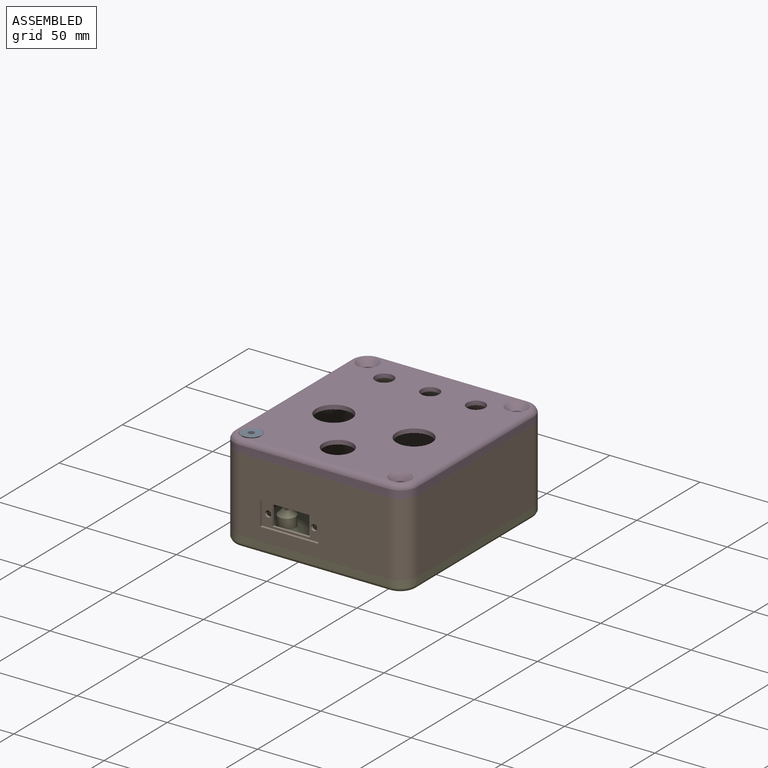
[diagram: assembled view]
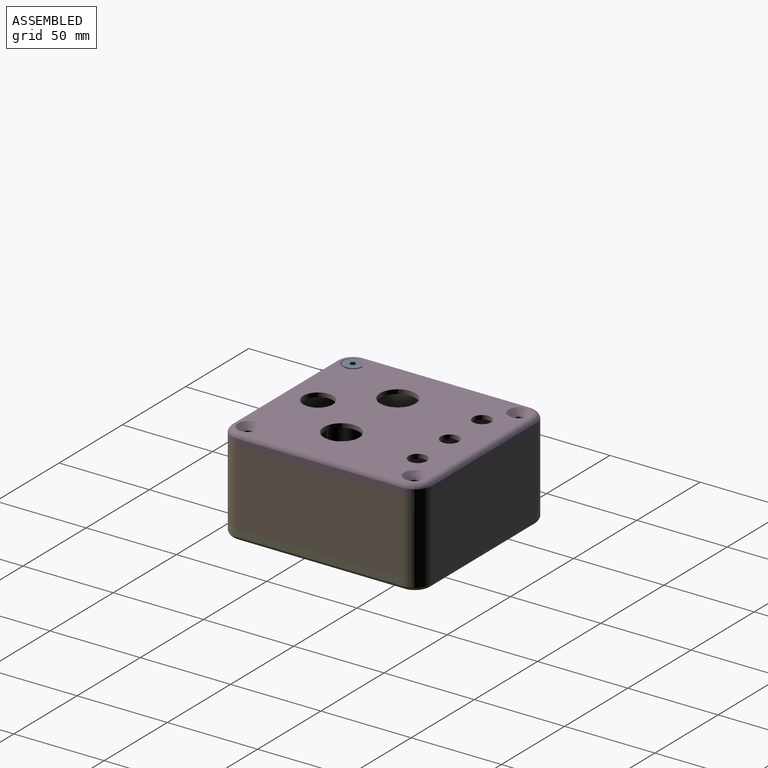
[diagram: assembled view, second angle]
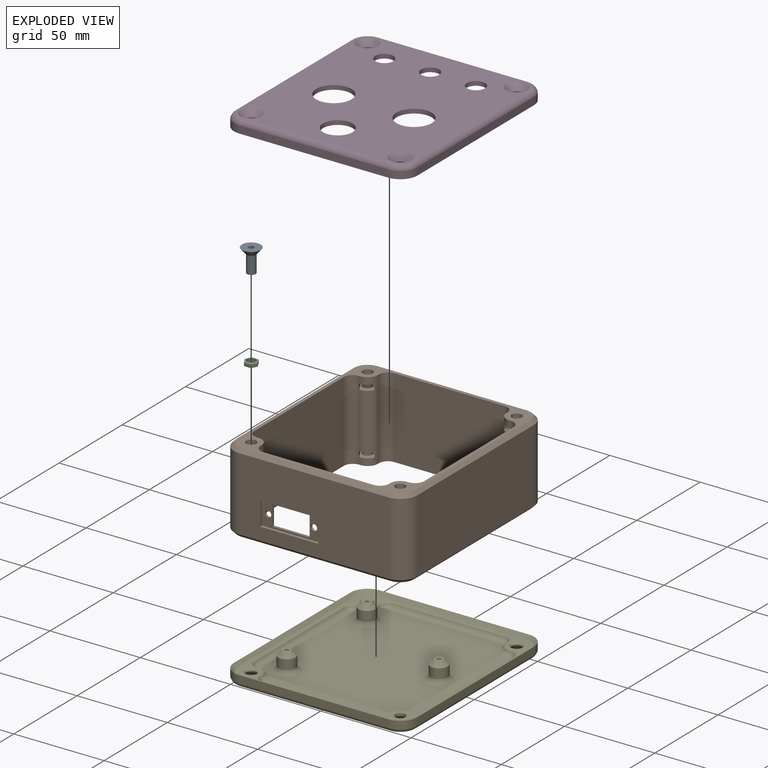
[diagram: exploded view]
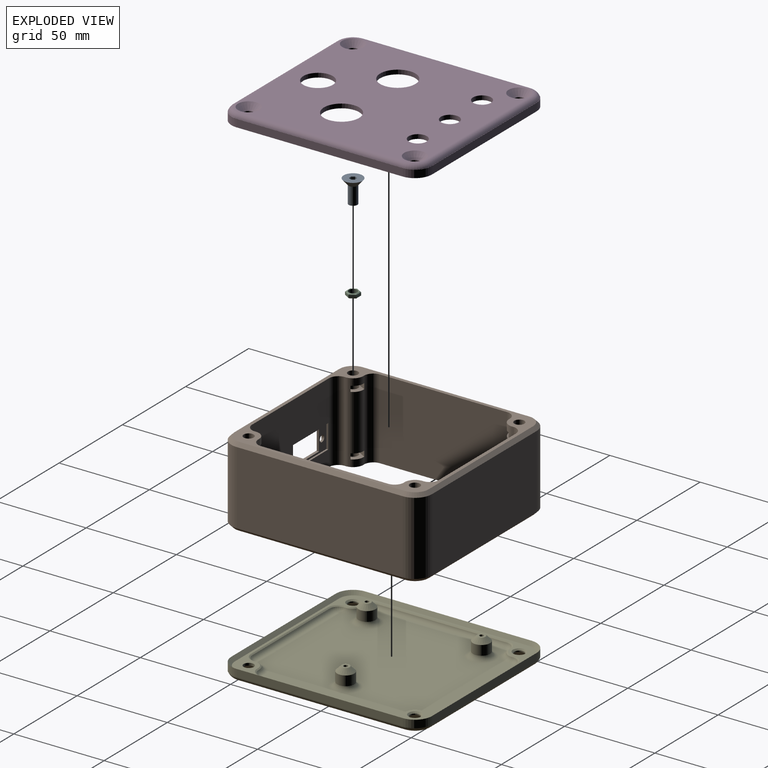
[diagram: exploded view, second angle]
ASSEMBLY  parts=5 mates=4
PART A: 11 faces, bbox 10.4x10.4x12.8 mm
  f0: plane 4.83x4.83mm, normal (0,0,-1), area 18.3mm2, adj f1
  f1: cylinder r=2.41mm len=9.53mm, axis (0,0,-1), area 144.4mm2, adj f0,f2
  f2: cone r=2.41mm half-angle=41deg, axis (0,0,1), area 102.5mm2, adj f1,f3
  f3: plane 10.44x10.44mm, normal (0,0,1), area 76.9mm2, adj f2,f4,f5,f6,f7,f8,f9
  f4: plane 2.36x1.65mm, normal (-0.9,0.44,0), area 4.3mm2, adj f3,f5,f9,f10
  f5: plane 2.36x1.52mm, normal (-0.83,-0.56,0), area 4.3mm2, adj f3,f4,f6,f10
  f6: plane 2.36x1.83mm, normal (0.07,-1,0), area 4.3mm2, adj f3,f5,f7,f10
  f7: plane 2.36x1.65mm, normal (0.9,-0.44,0), area 4.3mm2, adj f3,f6,f8,f10
  f8: plane 2.36x1.52mm, normal (0.83,0.56,0), area 4.3mm2, adj f3,f7,f9,f10
  f9: plane 2.36x1.83mm, normal (-0.07,1,0), area 4.3mm2, adj f3,f4,f8,f10
  f10: plane 3.66x3.29mm, normal (0,0,1), area 8.7mm2, adj f4,f5,f6,f7,f8,f9
PART B: 118 faces, bbox 101.6x111.1x44.5 mm
  f0: plane 11.1x1.27mm, normal (-1,0,0), area 14.1mm2, adj f1,f3,f112,f117
  f1: plane 20.62x1.27mm, normal (0,0,-1), area 26.2mm2, adj f0,f2,f112,f117
  f2: plane 11.1x1.27mm, normal (1,0,0), area 14.1mm2, adj f1,f3,f112,f117
  f3: plane 20.62x1.27mm, normal (0,0,1), area 26.2mm2, adj f0,f2,f112,f117
  f4: cylinder r=1.74mm len=3.48mm, axis (0,-1,0), area 13.9mm2, adj f112,f117
  f5: cylinder r=1.74mm len=3.48mm, axis (0,-1,0), area 13.9mm2, adj f112,f117
  f6: plane 61x44.45mm, normal (0,1,0), area 2285.3mm2, adj f44,f45,f54,f55,f113,f114,f115,f116
  f7: plane 82.55x40.64mm, normal (0,-1,0), area 2928.8mm2, adj f33,f51,f99,f104,f108,f109,f110,f111
  f8: plane 5.67x3.28mm, normal (0.87,0.5,0), area 20mm2, adj f9,f43,f73,f90
  f9: plane 3.96x3.05mm, normal (0,1,0), area 12.1mm2, adj f8,f10,f73,f90
  f10: plane 3.43x3.05mm, normal (-0.87,0.5,0), area 12.1mm2, adj f9,f11,f73,f90
  f11: plane 5.7x3.29mm, normal (-0.87,-0.5,0), area 20mm2, adj f10,f42,f73,f90
  f12: plane 3.96x3.05mm, normal (0,-1,0), area 12.1mm2, adj f13,f15,f79,f87
  f13: plane 5.67x3.28mm, normal (0.87,-0.5,0), area 20mm2, adj f12,f39,f79,f87
  f14: plane 5.7x3.29mm, normal (-0.87,0.5,0), area 20mm2, adj f15,f40,f79,f87
  f15: plane 3.43x3.05mm, normal (-0.87,-0.5,0), area 12.1mm2, adj f12,f14,f79,f87
  f16: plane 5.7x3.29mm, normal (0.87,-0.5,0), area 20mm2, adj f17,f47,f67,f84
  f17: plane 3.43x3.05mm, normal (0.87,0.5,0), area 12.1mm2, adj f16,f18,f67,f84
  f18: plane 3.96x3.05mm, normal (0,1,0), area 12.1mm2, adj f17,f19,f67,f84
  f19: plane 5.67x3.28mm, normal (-0.87,0.5,0), area 20mm2, adj f18,f46,f67,f84
  f20: plane 3.43x3.05mm, normal (0.87,-0.5,0), area 12.1mm2, adj f21,f23,f61,f81
  f21: plane 5.7x3.29mm, normal (0.87,0.5,0), area 20mm2, adj f20,f34,f61,f81
  f22: plane 5.67x3.28mm, normal (-0.87,-0.5,0), area 20mm2, adj f23,f35,f61,f81
  f23: plane 3.96x3.05mm, normal (0,-1,0), area 12.1mm2, adj f20,f22,f61,f81
  f24: cylinder r=2.79mm len=5.59mm, axis (0,0,-1), area 66.9mm2, adj f55,f78
  f25: cylinder r=2.79mm len=5.59mm, axis (0,0,-1), area 66.9mm2, adj f55,f72
  f26: cylinder r=2.79mm len=5.59mm, axis (0,0,-1), area 66.9mm2, adj f55,f66
  f27: cylinder r=2.79mm len=5.59mm, axis (0,0,-1), area 66.9mm2, adj f55,f60
  f28: plane 92.08x40.64mm, normal (1,0,0), area 3741.9mm2, adj f29,f51,f95,f100
  f29: cylinder r=9.53mm len=40.64mm, axis (0,0,-1), area 608mm2, adj f28,f30,f93,f101
  f30: plane 82.55x40.64mm, normal (0,1,0), area 3354.8mm2, adj f29,f31,f92,f103
  f31: cylinder r=9.53mm len=40.64mm, axis (0,0,-1), area 608mm2, adj f30,f32,f94,f105
  f32: plane 92.08x40.64mm, normal (-1,0,0), area 3741.9mm2, adj f31,f33,f96,f107
  f33: cylinder r=9.53mm len=40.64mm, axis (0,0,-1), area 608mm2, adj f7,f32,f98,f106
  f34: cylinder r=5.08mm len=44.45mm, axis (0,0,-1), area 365.9mm2, adj f21,f35,f52,f54,f55,f57,f60,f61
  f35: cylinder r=5.71mm len=44.45mm, axis (0,0,-1), area 386.2mm2, adj f22,f34,f36,f54,f55,f58,f60,f61
  f36: cylinder r=5.08mm len=44.45mm, axis (0,0,-1), area 368mm2, adj f35,f37,f54,f55
  f37: plane 61x44.45mm, normal (0,-1,0), area 2711.3mm2, adj f36,f38,f54,f55
  f38: cylinder r=5.08mm len=44.45mm, axis (0,0,-1), area 368mm2, adj f37,f39,f54,f55
  f39: cylinder r=5.71mm len=44.45mm, axis (0,0,-1), area 386.2mm2, adj f13,f38,f40,f54,f55,f75,f78,f79
  f40: cylinder r=5.08mm len=44.45mm, axis (0,0,-1), area 365.9mm2, adj f14,f39,f41,f54,f55,f76,f78,f79
  f41: plane 70.52x44.45mm, normal (-1,0,0), area 3134.7mm2, adj f40,f42,f54,f55
  f42: cylinder r=5.08mm len=44.45mm, axis (0,0,-1), area 365.9mm2, adj f11,f41,f43,f54,f55,f71,f72,f73
  f43: cylinder r=5.71mm len=44.45mm, axis (0,0,-1), area 386.2mm2, adj f8,f42,f44,f54,f55,f68,f72,f73
  f44: cylinder r=5.08mm len=44.45mm, axis (0,0,-1), area 368mm2, adj f6,f43,f54,f55
  f45: cylinder r=5.08mm len=44.45mm, axis (0,0,-1), area 368mm2, adj f6,f46,f54,f55
  f46: cylinder r=5.71mm len=44.45mm, axis (0,0,-1), area 386.2mm2, adj f19,f45,f47,f54,f55,f65,f66,f67
  f47: cylinder r=5.08mm len=44.45mm, axis (0,0,-1), area 365.9mm2, adj f16,f46,f52,f54,f55,f62,f66,f67
  f48: cylinder r=2.79mm len=5.59mm, axis (0,0,-1), area 66.9mm2, adj f54,f79
  f49: cylinder r=2.79mm len=5.59mm, axis (0,0,-1), area 66.9mm2, adj f54,f73
  f50: cylinder r=2.79mm len=5.59mm, axis (0,0,-1), area 66.9mm2, adj f54,f67
  f51: cylinder r=9.53mm len=40.64mm, axis (0,0,-1), area 608mm2, adj f7,f28,f97,f102
  f52: plane 70.52x44.45mm, normal (1,0,0), area 3134.7mm2, adj f34,f47,f54,f55
  f53: cylinder r=2.79mm len=5.59mm, axis (0,0,-1), area 66.9mm2, adj f54,f61
  f54: plane 107.32x97.79mm, normal (0,0,1), area 1157mm2, adj f6,f34,f35,f36,f37,f38,f39,f40
  f55: plane 107.32x97.79mm, normal (0,0,-1), area 1157mm2, adj f6,f24,f25,f26,f27,f34,f35,f36
  f56: plane 3.43x3.05mm, normal (0.87,-0.5,0), area 12.1mm2, adj f57,f59,f60,f82
  f57: plane 5.7x3.29mm, normal (0.87,0.5,0), area 20mm2, adj f34,f56,f60,f82
  f58: plane 5.67x3.28mm, normal (-0.87,-0.5,0), area 20mm2, adj f35,f59,f60,f82
  f59: plane 3.96x3.05mm, normal (0,-1,0), area 12.1mm2, adj f56,f58,f60,f82
  f60: plane 9.22x9.14mm, normal (0,0,1), area 32.5mm2, adj f27,f34,f35,f56,f57,f58,f59
  f61: plane 9.22x9.14mm, normal (0,0,-1), area 32.5mm2, adj f20,f21,f22,f23,f34,f35,f53
  f62: plane 5.7x3.29mm, normal (0.87,-0.5,0), area 20mm2, adj f47,f63,f66,f85
  f63: plane 3.43x3.05mm, normal (0.87,0.5,0), area 12.1mm2, adj f62,f64,f66,f85
  f64: plane 3.96x3.05mm, normal (0,1,0), area 12.1mm2, adj f63,f65,f66,f85
  f65: plane 5.67x3.28mm, normal (-0.87,0.5,0), area 20mm2, adj f46,f64,f66,f85
  f66: plane 9.22x9.14mm, normal (0,0,1), area 32.5mm2, adj f26,f46,f47,f62,f63,f64,f65
  f67: plane 9.22x9.14mm, normal (0,0,-1), area 32.5mm2, adj f16,f17,f18,f19,f46,f47,f50
  f68: plane 5.67x3.28mm, normal (0.87,0.5,0), area 20mm2, adj f43,f69,f72,f91
  f69: plane 3.96x3.05mm, normal (0,1,0), area 12.1mm2, adj f68,f70,f72,f91
  f70: plane 3.43x3.05mm, normal (-0.87,0.5,0), area 12.1mm2, adj f69,f71,f72,f91
  f71: plane 5.7x3.29mm, normal (-0.87,-0.5,0), area 20mm2, adj f42,f70,f72,f91
  f72: plane 9.22x9.14mm, normal (0,0,1), area 32.5mm2, adj f25,f42,f43,f68,f69,f70,f71
  f73: plane 9.22x9.14mm, normal (0,0,-1), area 32.5mm2, adj f8,f9,f10,f11,f42,f43,f49
  f74: plane 3.96x3.05mm, normal (0,-1,0), area 12.1mm2, adj f75,f77,f78,f88
  f75: plane 5.67x3.28mm, normal (0.87,-0.5,0), area 20mm2, adj f39,f74,f78,f88
  f76: plane 5.7x3.29mm, normal (-0.87,0.5,0), area 20mm2, adj f40,f77,f78,f88
  f77: plane 3.43x3.05mm, normal (-0.87,-0.5,0), area 12.1mm2, adj f74,f76,f78,f88
  f78: plane 9.22x9.14mm, normal (0,0,1), area 32.5mm2, adj f24,f39,f40,f74,f75,f76,f77
  f79: plane 9.22x9.14mm, normal (0,0,-1), area 32.5mm2, adj f12,f13,f14,f15,f39,f40,f48
  f80: cylinder r=2.79mm len=30.73mm, axis (0,0,-1), area 539.5mm2, adj f81,f82
  f81: plane 9.22x9.14mm, normal (0,0,1), area 32.5mm2, adj f20,f21,f22,f23,f34,f35,f80
  f82: plane 9.22x9.14mm, normal (0,0,-1), area 32.5mm2, adj f34,f35,f56,f57,f58,f59,f80
  f83: cylinder r=2.79mm len=30.73mm, axis (0,0,-1), area 539.5mm2, adj f84,f85
  f84: plane 9.22x9.14mm, normal (0,0,1), area 32.5mm2, adj f16,f17,f18,f19,f46,f47,f83
  f85: plane 9.22x9.14mm, normal (0,0,-1), area 32.5mm2, adj f46,f47,f62,f63,f64,f65,f83
  f86: cylinder r=2.79mm len=30.73mm, axis (0,0,-1), area 539.5mm2, adj f87,f88
  f87: plane 9.22x9.14mm, normal (0,0,1), area 32.5mm2, adj f12,f13,f14,f15,f39,f40,f86
  f88: plane 9.22x9.14mm, normal (0,0,-1), area 32.5mm2, adj f39,f40,f74,f75,f76,f77,f86
  f89: cylinder r=2.79mm len=30.73mm, axis (0,0,-1), area 539.5mm2, adj f90,f91
  f90: plane 9.22x9.14mm, normal (0,0,1), area 32.5mm2, adj f8,f9,f10,f11,f42,f43,f89
  f91: plane 9.22x9.14mm, normal (0,0,-1), area 32.5mm2, adj f42,f43,f68,f69,f70,f71,f89
  f92: plane 82.55x1.91mm, normal (0,0.71,-0.71), area 222.4mm2, adj f30,f55,f93,f94
  f93: cone r=9.53mm half-angle=45deg, axis (0,0,1), area 36.3mm2, adj f29,f55,f92,f95
  f94: cone r=9.53mm half-angle=45deg, axis (0,0,1), area 36.3mm2, adj f31,f55,f92,f96
  f95: plane 92.08x1.91mm, normal (0.71,0,-0.71), area 248.1mm2, adj f28,f55,f93,f97
  f96: plane 92.08x1.91mm, normal (-0.71,0,-0.71), area 248.1mm2, adj f32,f55,f94,f98
  f97: cone r=9.53mm half-angle=45deg, axis (0,0,1), area 36.3mm2, adj f51,f55,f95,f99
  f98: cone r=9.53mm half-angle=45deg, axis (0,0,1), area 36.3mm2, adj f33,f55,f96,f99
  f99: plane 82.55x1.91mm, normal (0,-0.71,-0.71), area 222.4mm2, adj f7,f55,f97,f98
  f100: plane 92.08x1.91mm, normal (0.71,0,0.71), area 248.1mm2, adj f28,f54,f101,f102
  f101: cone r=7.62mm half-angle=45deg, axis (0,0,-1), area 36.3mm2, adj f29,f54,f100,f103
  f102: cone r=7.62mm half-angle=45deg, axis (0,0,-1), area 36.3mm2, adj f51,f54,f100,f104
  f103: plane 82.55x1.91mm, normal (0,0.71,0.71), area 222.4mm2, adj f30,f54,f101,f105
  f104: plane 82.55x1.91mm, normal (0,-0.71,0.71), area 222.4mm2, adj f7,f54,f102,f106
  f105: cone r=7.62mm half-angle=45deg, axis (0,0,-1), area 36.3mm2, adj f31,f54,f103,f107
  f106: cone r=7.62mm half-angle=45deg, axis (0,0,-1), area 36.3mm2, adj f33,f54,f104,f107
  f107: plane 92.08x1.91mm, normal (-0.71,0,0.71), area 248.1mm2, adj f32,f54,f105,f106
  f108: plane 32.26x1.52mm, normal (0,0,1), area 49.2mm2, adj f7,f109,f111,f112
  f109: plane 13.21x1.52mm, normal (-1,0,0), area 20.1mm2, adj f7,f108,f110,f112
  f110: plane 32.26x1.52mm, normal (0,0,-1), area 49.2mm2, adj f7,f109,f111,f112
  f111: plane 13.21x1.52mm, normal (1,0,0), area 20.1mm2, adj f7,f108,f110,f112
  f112: plane 32.26x13.21mm, normal (0,-1,0), area 178.1mm2, adj f0,f1,f2,f3,f4,f5,f108,f109
  f113: plane 32.26x1.02mm, normal (0,0,1), area 32.8mm2, adj f6,f114,f116,f117
  f114: plane 13.21x1.02mm, normal (1,0,0), area 13.4mm2, adj f6,f113,f115,f117
  f115: plane 32.26x1.02mm, normal (0,0,-1), area 32.8mm2, adj f6,f114,f116,f117
  f116: plane 13.21x1.02mm, normal (-1,0,0), area 13.4mm2, adj f6,f113,f115,f117
  f117: plane 32.26x13.21mm, normal (0,1,0), area 178.1mm2, adj f0,f1,f2,f3,f4,f5,f113,f114
PART C: 21 faces, bbox 7.3x6.4x2.4 mm
  f0: plane 3.18x1.83mm, normal (0.87,0.5,0), area 5.7mm2, adj f1,f6,f10,f17
  f1: plane 3.67x1.56mm, normal (0,1,0), area 5.7mm2, adj f0,f2,f12,f15
  f2: plane 3.18x1.83mm, normal (-0.87,0.5,0), area 5.7mm2, adj f1,f3,f14,f16
  f3: plane 3.18x1.83mm, normal (-0.87,-0.5,0), area 5.7mm2, adj f2,f4,f13,f18
  f4: plane 3.67x1.56mm, normal (0,-1,0), area 5.7mm2, adj f3,f6,f11,f20
  f5: cylinder r=2.41mm len=4.83mm, axis (0,0,-1), area 36mm2, adj f7,f8
  f6: plane 3.18x1.83mm, normal (0.87,-0.5,0), area 5.7mm2, adj f0,f4,f9,f19
  f7: plane 6.39x5.54mm, normal (0,0,1), area 8.3mm2, adj f5,f15,f16,f17,f18,f19,f20
  f8: plane 6.39x5.54mm, normal (0,0,-1), area 8.3mm2, adj f5,f9,f10,f11,f12,f13,f14
  f9: plane 3.18x2.07mm, normal (0.61,-0.35,-0.71), area 2mm2, adj f6,f8,f10,f11
  f10: plane 3.18x2.07mm, normal (0.61,0.35,-0.71), area 2mm2, adj f0,f8,f9,f12
  f11: plane 3.67x0.41mm, normal (0,-0.71,-0.71), area 2mm2, adj f4,f8,f9,f13
  f12: plane 3.67x0.41mm, normal (0,0.71,-0.71), area 2mm2, adj f1,f8,f10,f14
  f13: plane 3.18x2.07mm, normal (-0.61,-0.35,-0.71), area 2mm2, adj f3,f8,f11,f14
  f14: plane 3.18x2.07mm, normal (-0.61,0.35,-0.71), area 2mm2, adj f2,f8,f12,f13
  f15: plane 3.67x0.41mm, normal (0,0.71,0.71), area 2mm2, adj f1,f7,f16,f17
  f16: plane 3.18x2.07mm, normal (-0.61,0.35,0.71), area 2mm2, adj f2,f7,f15,f18
  f17: plane 3.18x2.07mm, normal (0.61,0.35,0.71), area 2mm2, adj f0,f7,f15,f19
  f18: plane 3.18x2.07mm, normal (-0.61,-0.35,0.71), area 2mm2, adj f3,f7,f16,f20
  f19: plane 3.18x2.07mm, normal (0.61,-0.35,0.71), area 2mm2, adj f6,f7,f17,f20
  f20: plane 3.67x0.41mm, normal (0,-0.71,0.71), area 2mm2, adj f4,f7,f18,f19
PART D: 92 faces, bbox 103.2x112.7x6.6 mm
  f0: plane 97.36x87.83mm, normal (0,0,-1), area 7030mm2, adj f2,f3,f4,f5,f6,f11,f17,f18
  f1: plane 107.35x97.83mm, normal (0,0,-1), area 918.5mm2, adj f10,f50,f51,f52,f53,f54,f55,f56
  f2: cylinder r=9.78mm len=19.56mm, axis (0,0,-1), area 146.3mm2, adj f0,f12
  f3: cylinder r=9.78mm len=19.56mm, axis (0,0,-1), area 146.3mm2, adj f0,f12
  f4: cylinder r=8.19mm len=16.38mm, axis (0,0,-1), area 122.6mm2, adj f0,f12
  f5: cylinder r=5.02mm len=10.03mm, axis (0,0,-1), area 75.1mm2, adj f0,f12
  f6: cylinder r=5.02mm len=10.03mm, axis (0,0,-1), area 75.1mm2, adj f0,f12
  f7: cylinder r=2.79mm len=5.59mm, axis (0,0,-1), area 11.4mm2, adj f13,f74
  f8: cylinder r=2.79mm len=5.59mm, axis (0,0,-1), area 11.4mm2, adj f14,f75
  f9: cylinder r=2.79mm len=5.59mm, axis (0,0,-1), area 11.4mm2, adj f15,f76
  f10: cylinder r=2.79mm len=5.59mm, axis (0,0,-1), area 24.7mm2, adj f1,f16
  f11: cylinder r=5.02mm len=10.03mm, axis (0,0,-1), area 75.1mm2, adj f0,f12
  f12: plane 104.78x95.25mm, normal (0,0,1), area 8448.6mm2, adj f2,f3,f4,f5,f6,f11,f13,f14
  f13: cone r=2.79mm half-angle=43.4deg, axis (0,0,1), area 127.1mm2, adj f7,f12
  f14: cone r=2.79mm half-angle=43.4deg, axis (0,0,1), area 127.1mm2, adj f8,f12
  f15: cone r=2.79mm half-angle=43.4deg, axis (0,0,1), area 127.1mm2, adj f9,f12
  f16: cone r=2.79mm half-angle=43.4deg, axis (0,0,1), area 127.1mm2, adj f10,f12
  f17: cylinder r=3.17mm len=70.52mm, axis (0,1,0), area 260.8mm2, adj f0,f18,f19,f66
  f18: torus R=2.01mm, axis (0,0,-1), area 22mm2, adj f0,f17,f20,f64
  f19: torus R=2.01mm, axis (0,0,-1), area 22mm2, adj f0,f17,f21,f68
  f20: torus R=8.79mm, axis (0,0,1), area 44.6mm2, adj f0,f18,f22,f62
  f21: torus R=8.79mm, axis (0,0,1), area 44.6mm2, adj f0,f19,f23,f70
  f22: torus R=2.01mm, axis (0,0,-1), area 22mm2, adj f0,f20,f24,f60
  f23: torus R=2.01mm, axis (0,0,-1), area 22mm2, adj f0,f21,f25,f72
  f24: cylinder r=3.17mm len=61mm, axis (1,0,0), area 225.5mm2, adj f0,f22,f26,f58
  f25: cylinder r=3.17mm len=61mm, axis (1,0,0), area 225.5mm2, adj f0,f23,f27,f73
  f26: torus R=2.01mm, axis (0,0,-1), area 22mm2, adj f0,f24,f28,f59
  f27: torus R=2.01mm, axis (0,0,-1), area 22mm2, adj f0,f25,f29,f71
  f28: torus R=8.79mm, axis (0,0,1), area 44.6mm2, adj f0,f26,f30,f61
  f29: torus R=8.79mm, axis (0,0,1), area 44.6mm2, adj f0,f27,f31,f69
  f30: torus R=2.01mm, axis (0,0,-1), area 22mm2, adj f0,f28,f32,f63
  f31: torus R=2.01mm, axis (0,0,-1), area 22mm2, adj f0,f29,f32,f67
  f32: cylinder r=3.17mm len=70.52mm, axis (0,1,0), area 260.8mm2, adj f0,f30,f31,f65
  f33: cylinder r=3.17mm len=82.55mm, axis (-1,0,0), area 345.5mm2, adj f12,f34,f35,f41
  f34: torus R=6.35mm, axis (0,0,1), area 53.6mm2, adj f12,f33,f36,f41
  f35: torus R=6.35mm, axis (0,0,1), area 53.6mm2, adj f12,f33,f37,f41
  f36: cylinder r=3.17mm len=92.08mm, axis (0,-1,0), area 385.3mm2, adj f12,f34,f38,f41
  f37: cylinder r=3.17mm len=92.08mm, axis (0,1,0), area 385.3mm2, adj f12,f35,f39,f41
  f38: torus R=6.35mm, axis (0,0,1), area 53.6mm2, adj f12,f36,f40,f41
  f39: torus R=6.35mm, axis (0,0,1), area 53.6mm2, adj f12,f37,f40,f41
  f40: cylinder r=3.17mm len=82.55mm, axis (1,0,0), area 345.5mm2, adj f12,f38,f39,f41
  f41: plane 111.13x101.6mm, normal (0,0,1), area 41.2mm2, adj f33,f34,f35,f36,f37,f38,f39,f40
  f42: cylinder r=9.53mm len=9.53mm, axis (0,0,-1), area 63.8mm2, adj f41,f43,f49,f52
  f43: plane 82.55x4.27mm, normal (0,-1,0), area 352.3mm2, adj f41,f42,f44,f54
  f44: cylinder r=9.53mm len=9.53mm, axis (0,0,-1), area 63.8mm2, adj f41,f43,f45,f56
  f45: plane 92.08x4.27mm, normal (-1,0,0), area 392.9mm2, adj f41,f44,f46,f57
  f46: cylinder r=9.53mm len=9.53mm, axis (0,0,-1), area 63.8mm2, adj f41,f45,f47,f55
  f47: plane 82.55x4.27mm, normal (0,1,0), area 352.3mm2, adj f41,f46,f48,f53
  f48: cylinder r=9.53mm len=9.53mm, axis (0,0,-1), area 63.8mm2, adj f41,f47,f49,f51
  f49: plane 92.08x4.27mm, normal (1,0,0), area 392.9mm2, adj f41,f42,f48,f50
  f50: plane 92.08x1.89mm, normal (-0.71,0,-0.71), area 245.6mm2, adj f1,f49,f51,f52
  f51: cone r=9.58mm half-angle=45deg, axis (0,0,-1), area 36mm2, adj f1,f48,f50,f53
  f52: cone r=9.58mm half-angle=45deg, axis (0,0,-1), area 36mm2, adj f1,f42,f50,f54
  f53: plane 82.55x1.89mm, normal (0,-0.71,-0.71), area 220.2mm2, adj f1,f47,f51,f55
  f54: plane 82.55x1.89mm, normal (0,0.71,-0.71), area 220.2mm2, adj f1,f43,f52,f56
  f55: cone r=9.58mm half-angle=45deg, axis (0,0,-1), area 36mm2, adj f1,f46,f53,f57
  f56: cone r=9.58mm half-angle=45deg, axis (0,0,-1), area 36mm2, adj f1,f44,f54,f57
  f57: plane 92.08x1.89mm, normal (0.71,0,-0.71), area 245.6mm2, adj f1,f45,f55,f56
  f58: plane 61x0.7mm, normal (0,-0.55,-0.84), area 51.1mm2, adj f1,f24,f59,f60
  f59: cone r=5.62mm half-angle=56.6deg, axis (0,0,-1), area 7.2mm2, adj f1,f26,f58,f61
  f60: cone r=5.62mm half-angle=56.6deg, axis (0,0,-1), area 7.2mm2, adj f1,f22,f58,f62
  f61: cone r=5.87mm half-angle=56.6deg, axis (0,0,1), area 7.8mm2, adj f1,f28,f59,f63
  f62: cone r=5.87mm half-angle=56.6deg, axis (0,0,1), area 7.8mm2, adj f1,f20,f60,f64
  f63: cone r=5.62mm half-angle=56.6deg, axis (0,0,-1), area 7.2mm2, adj f1,f30,f61,f65
  f64: cone r=5.62mm half-angle=56.6deg, axis (0,0,-1), area 7.2mm2, adj f1,f18,f62,f66
  f65: plane 70.52x0.7mm, normal (-0.55,0,-0.84), area 59.1mm2, adj f1,f32,f63,f67
  f66: plane 70.52x0.7mm, normal (0.55,0,-0.84), area 59.1mm2, adj f1,f17,f64,f68
  f67: cone r=5.62mm half-angle=56.6deg, axis (0,0,-1), area 7.2mm2, adj f1,f31,f65,f69
  f68: cone r=5.62mm half-angle=56.6deg, axis (0,0,-1), area 7.2mm2, adj f1,f19,f66,f70
  f69: cone r=5.87mm half-angle=56.6deg, axis (0,0,1), area 7.8mm2, adj f1,f29,f67,f71
  f70: cone r=5.87mm half-angle=56.6deg, axis (0,0,1), area 7.8mm2, adj f1,f21,f68,f72
  f71: cone r=5.62mm half-angle=56.6deg, axis (0,0,-1), area 7.2mm2, adj f1,f27,f69,f73
  f72: cone r=5.62mm half-angle=56.6deg, axis (0,0,-1), area 7.2mm2, adj f1,f23,f70,f73
  f73: plane 61x0.7mm, normal (0,0.55,-0.84), area 51.1mm2, adj f1,f25,f71,f72
  f74: cone r=3.56mm half-angle=45deg, axis (0,0,-1), area 21.5mm2, adj f1,f7
  f75: cone r=3.56mm half-angle=45deg, axis (0,0,-1), area 21.5mm2, adj f1,f8
  f76: cone r=3.56mm half-angle=45deg, axis (0,0,-1), area 21.5mm2, adj f1,f9
  f77: plane 3.05x1.78mm, normal (1,0,0), area 5.4mm2, adj f0,f78,f80,f81
  f78: plane 1.78x1.02mm, normal (0,1,0), area 1.8mm2, adj f0,f77,f79,f81
  f79: plane 3.05x1.78mm, normal (-1,0,0), area 5.4mm2, adj f0,f78,f80,f81
  f80: plane 1.78x1.02mm, normal (0,-1,0), area 1.8mm2, adj f0,f77,f79,f81
  f81: plane 3.05x1.02mm, normal (0,0,-1), area 3.1mm2, adj f77,f78,f79,f80
  f82: plane 3.05x1.78mm, normal (-1,0,0), area 5.4mm2, adj f0,f83,f85,f86
  f83: plane 1.78x1.02mm, normal (0,-1,0), area 1.8mm2, adj f0,f82,f84,f86
  f84: plane 3.05x1.78mm, normal (1,0,0), area 5.4mm2, adj f0,f83,f85,f86
  f85: plane 1.78x1.02mm, normal (0,1,0), area 1.8mm2, adj f0,f82,f84,f86
  f86: plane 3.05x1.02mm, normal (0,0,-1), area 3.1mm2, adj f82,f83,f84,f85
  f87: plane 1.78x1.02mm, normal (0,-1,0), area 1.8mm2, adj f0,f88,f90,f91
  f88: plane 3.05x1.78mm, normal (1,0,0), area 5.4mm2, adj f0,f87,f89,f91
  f89: plane 1.78x1.02mm, normal (0,1,0), area 1.8mm2, adj f0,f88,f90,f91
  f90: plane 3.05x1.78mm, normal (-1,0,0), area 5.4mm2, adj f0,f87,f89,f91
  f91: plane 3.05x1.02mm, normal (0,0,-1), area 3.1mm2, adj f87,f88,f89,f90
PART E: 89 faces, bbox 103.2x112.7x12.7 mm
  f0: plane 107.35x97.83mm, normal (0,0,-1), area 918.5mm2, adj f3,f47,f48,f49,f50,f51,f52,f53
  f1: cylinder r=2.79mm len=5.59mm, axis (0,0,-1), area 11.4mm2, adj f7,f72
  f2: cylinder r=2.79mm len=5.59mm, axis (0,0,-1), area 11.4mm2, adj f8,f73
  f3: cylinder r=2.79mm len=5.59mm, axis (0,0,-1), area 24.7mm2, adj f0,f9
  f4: cylinder r=2.79mm len=5.59mm, axis (0,0,-1), area 11.4mm2, adj f6,f71
  f5: plane 104.78x95.25mm, normal (0,0,1), area 9497.5mm2, adj f6,f7,f8,f9,f30,f31,f32,f33
  f6: cone r=2.79mm half-angle=43.4deg, axis (0,0,1), area 127.1mm2, adj f4,f5
  f7: cone r=2.79mm half-angle=43.4deg, axis (0,0,1), area 127.1mm2, adj f1,f5
  f8: cone r=2.79mm half-angle=43.4deg, axis (0,0,1), area 127.1mm2, adj f2,f5
  f9: cone r=2.79mm half-angle=43.4deg, axis (0,0,1), area 127.1mm2, adj f3,f5
  f10: plane 97.36x87.83mm, normal (0,0,-1), area 7509.3mm2, adj f11,f12,f13,f14,f15,f16,f17,f18
  f11: cylinder r=3.17mm len=70.52mm, axis (0,1,0), area 260.8mm2, adj f10,f12,f13,f63
  f12: torus R=2.01mm, axis (0,0,-1), area 22mm2, adj f10,f11,f14,f61
  f13: torus R=2.01mm, axis (0,0,-1), area 22mm2, adj f10,f11,f15,f65
  f14: torus R=8.79mm, axis (0,0,1), area 44.6mm2, adj f10,f12,f16,f59
  f15: torus R=8.79mm, axis (0,0,1), area 44.6mm2, adj f10,f13,f17,f67
  f16: torus R=2.01mm, axis (0,0,-1), area 22mm2, adj f10,f14,f18,f57
  f17: torus R=2.01mm, axis (0,0,-1), area 22mm2, adj f10,f15,f19,f69
  f18: cylinder r=3.17mm len=61mm, axis (1,0,0), area 225.5mm2, adj f10,f16,f20,f55
  f19: cylinder r=3.17mm len=61mm, axis (1,0,0), area 225.5mm2, adj f10,f17,f21,f70
  f20: torus R=2.01mm, axis (0,0,-1), area 22mm2, adj f10,f18,f22,f56
  f21: torus R=2.01mm, axis (0,0,-1), area 22mm2, adj f10,f19,f23,f68
  f22: torus R=8.79mm, axis (0,0,1), area 44.6mm2, adj f10,f20,f24,f58
  f23: torus R=8.79mm, axis (0,0,1), area 44.6mm2, adj f10,f21,f25,f66
  f24: torus R=2.01mm, axis (0,0,-1), area 22mm2, adj f10,f22,f26,f60
  f25: torus R=2.01mm, axis (0,0,-1), area 22mm2, adj f10,f23,f26,f64
  f26: cylinder r=3.17mm len=70.52mm, axis (0,1,0), area 260.8mm2, adj f10,f24,f25,f62
  f27: torus R=7.84mm, axis (0,0,1), area 158.6mm2, adj f10,f76
  f28: torus R=7.84mm, axis (0,0,1), area 158.6mm2, adj f10,f74
  f29: torus R=7.84mm, axis (0,0,1), area 158.6mm2, adj f10,f78
  f30: cylinder r=3.17mm len=92.08mm, axis (0,1,0), area 385.3mm2, adj f5,f31,f32,f38
  f31: torus R=6.35mm, axis (0,0,1), area 53.6mm2, adj f5,f30,f33,f38
  f32: torus R=6.35mm, axis (0,0,1), area 53.6mm2, adj f5,f30,f34,f38
  f33: cylinder r=3.17mm len=82.55mm, axis (1,0,0), area 345.5mm2, adj f5,f31,f35,f38
  f34: cylinder r=3.17mm len=82.55mm, axis (-1,0,0), area 345.5mm2, adj f5,f32,f36,f38
  f35: torus R=6.35mm, axis (0,0,1), area 53.6mm2, adj f5,f33,f37,f38
  f36: torus R=6.35mm, axis (0,0,1), area 53.6mm2, adj f5,f34,f37,f38
  f37: cylinder r=3.17mm len=92.08mm, axis (0,-1,0), area 385.3mm2, adj f5,f35,f36,f38
  f38: plane 111.13x101.6mm, normal (0,0,1), area 41.2mm2, adj f30,f31,f32,f33,f34,f35,f36,f37
  f39: cylinder r=9.53mm len=9.53mm, axis (0,0,-1), area 63.8mm2, adj f38,f40,f46,f49
  f40: plane 82.55x4.27mm, normal (0,-1,0), area 352.3mm2, adj f38,f39,f41,f51
  f41: cylinder r=9.53mm len=9.53mm, axis (0,0,-1), area 63.8mm2, adj f38,f40,f42,f53
  f42: plane 92.08x4.27mm, normal (-1,0,0), area 392.9mm2, adj f38,f41,f43,f54
  f43: cylinder r=9.53mm len=9.53mm, axis (0,0,-1), area 63.8mm2, adj f38,f42,f44,f52
  f44: plane 82.55x4.27mm, normal (0,1,0), area 352.3mm2, adj f38,f43,f45,f50
  f45: cylinder r=9.53mm len=9.53mm, axis (0,0,-1), area 63.8mm2, adj f38,f44,f46,f48
  f46: plane 92.08x4.27mm, normal (1,0,0), area 392.9mm2, adj f38,f39,f45,f47
  f47: plane 92.08x1.89mm, normal (-0.71,0,-0.71), area 245.6mm2, adj f0,f46,f48,f49
  f48: cone r=9.58mm half-angle=45deg, axis (0,0,-1), area 36mm2, adj f0,f45,f47,f50
  f49: cone r=9.58mm half-angle=45deg, axis (0,0,-1), area 36mm2, adj f0,f39,f47,f51
  f50: plane 82.55x1.89mm, normal (0,-0.71,-0.71), area 220.2mm2, adj f0,f44,f48,f52
  f51: plane 82.55x1.89mm, normal (0,0.71,-0.71), area 220.2mm2, adj f0,f40,f49,f53
  f52: cone r=9.58mm half-angle=45deg, axis (0,0,-1), area 36mm2, adj f0,f43,f50,f54
  f53: cone r=9.58mm half-angle=45deg, axis (0,0,-1), area 36mm2, adj f0,f41,f51,f54
  f54: plane 92.08x1.89mm, normal (0.71,0,-0.71), area 245.6mm2, adj f0,f42,f52,f53
  f55: plane 61x0.7mm, normal (0,-0.55,-0.84), area 51.1mm2, adj f0,f18,f56,f57
  f56: cone r=5.62mm half-angle=56.6deg, axis (0,0,-1), area 7.2mm2, adj f0,f20,f55,f58
  f57: cone r=5.62mm half-angle=56.6deg, axis (0,0,-1), area 7.2mm2, adj f0,f16,f55,f59
  f58: cone r=5.87mm half-angle=56.6deg, axis (0,0,1), area 7.8mm2, adj f0,f22,f56,f60
  f59: cone r=5.87mm half-angle=56.6deg, axis (0,0,1), area 7.8mm2, adj f0,f14,f57,f61
  f60: cone r=5.62mm half-angle=56.6deg, axis (0,0,-1), area 7.2mm2, adj f0,f24,f58,f62
  f61: cone r=5.62mm half-angle=56.6deg, axis (0,0,-1), area 7.2mm2, adj f0,f12,f59,f63
  f62: plane 70.52x0.7mm, normal (-0.55,0,-0.84), area 59.1mm2, adj f0,f26,f60,f64
  f63: plane 70.52x0.7mm, normal (0.55,0,-0.84), area 59.1mm2, adj f0,f11,f61,f65
  f64: cone r=5.62mm half-angle=56.6deg, axis (0,0,-1), area 7.2mm2, adj f0,f25,f62,f66
  f65: cone r=5.62mm half-angle=56.6deg, axis (0,0,-1), area 7.2mm2, adj f0,f13,f63,f67
  f66: cone r=5.87mm half-angle=56.6deg, axis (0,0,1), area 7.8mm2, adj f0,f23,f64,f68
  f67: cone r=5.87mm half-angle=56.6deg, axis (0,0,1), area 7.8mm2, adj f0,f15,f65,f69
  f68: cone r=5.62mm half-angle=56.6deg, axis (0,0,-1), area 7.2mm2, adj f0,f21,f66,f70
  f69: cone r=5.62mm half-angle=56.6deg, axis (0,0,-1), area 7.2mm2, adj f0,f17,f67,f70
  f70: plane 61x0.7mm, normal (0,0.55,-0.84), area 51.1mm2, adj f0,f19,f68,f69
  f71: cone r=3.56mm half-angle=45deg, axis (0,0,-1), area 21.5mm2, adj f0,f4
  f72: cone r=3.56mm half-angle=45deg, axis (0,0,-1), area 21.5mm2, adj f0,f1
  f73: cone r=3.56mm half-angle=45deg, axis (0,0,-1), area 21.5mm2, adj f0,f2
  f74: cylinder r=4.76mm len=9.53mm, axis (0,0,1), area 161.5mm2, adj f28,f87
  f75: plane 4.45x4.45mm, normal (0,0,-1), area 11.8mm2, adj f84,f87
  f76: cylinder r=4.76mm len=9.53mm, axis (0,0,1), area 161.5mm2, adj f27,f86
  f77: plane 4.45x4.45mm, normal (0,0,-1), area 11.8mm2, adj f82,f86
  f78: cylinder r=4.76mm len=9.53mm, axis (0,0,1), area 161.5mm2, adj f29,f88
  f79: plane 4.45x4.45mm, normal (0,0,-1), area 11.8mm2, adj f80,f88
  f80: cylinder r=1.09mm len=10.32mm, axis (0,0,1), area 70.8mm2, adj f79,f81
  f81: plane 2.18x2.18mm, normal (0,0,-1), area 3.7mm2, adj f80
  f82: cylinder r=1.09mm len=10.32mm, axis (0,0,1), area 70.8mm2, adj f77,f83
  f83: plane 2.18x2.18mm, normal (0,0,-1), area 3.7mm2, adj f82
  f84: cylinder r=1.09mm len=10.32mm, axis (0,0,1), area 70.8mm2, adj f75,f85
  f85: plane 2.18x2.18mm, normal (0,0,-1), area 3.7mm2, adj f84
  f86: cone r=4.76mm half-angle=45deg, axis (0,0,1), area 78.8mm2, adj f76,f77
  f87: cone r=4.76mm half-angle=45deg, axis (0,0,1), area 78.8mm2, adj f74,f75
  f88: cone r=4.76mm half-angle=45deg, axis (0,0,1), area 78.8mm2, adj f78,f79
PLACE A t=(-41.27,-46.04,41.22)mm
PLACE B t=(0,0,26.99)mm
PLACE C t=(-41.27,-46.04,43.03)mm
PLACE D t=(0,0,51.59)mm
PLACE E rot(axis=(0,1,0),180deg) t=(0,0,2.38)mm
MATE fastened D.f8 <-> B.f24  axis (0,0,-1) through (41.28,46.04,49.21)mm
MATE revolute A.f1 <-> D.f10  axis (0,0,1) through (-41.27,-46.04,53.98)mm
MATE fastened B.f27 <-> E.f1  axis (0,0,-1) through (-41.27,46.04,4.76)mm
MATE revolute C.f5 <-> B.f26  axis (0,0,1) through (-41.27,-46.04,45.4)mm
